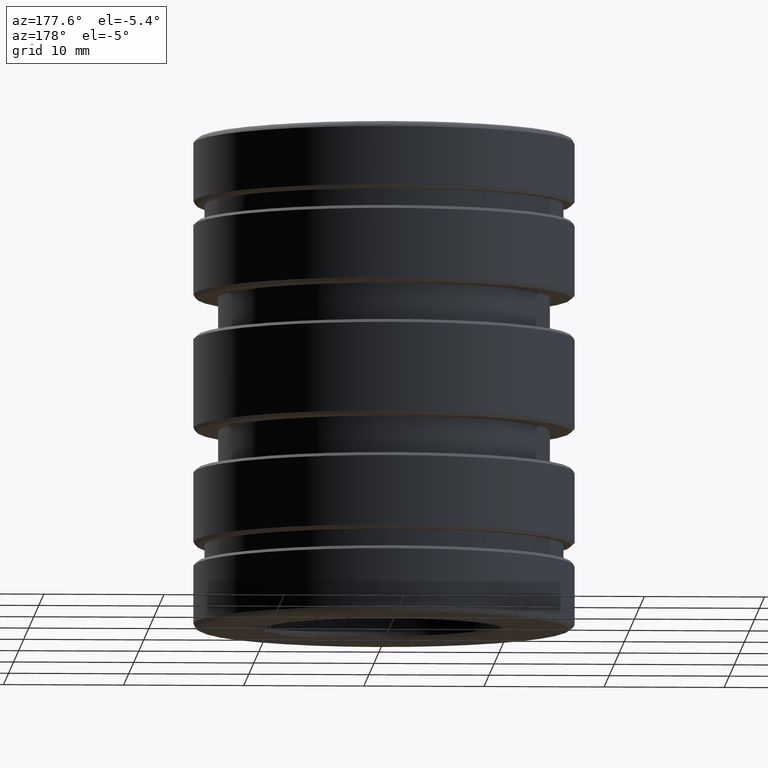
[diagram: clean part render]
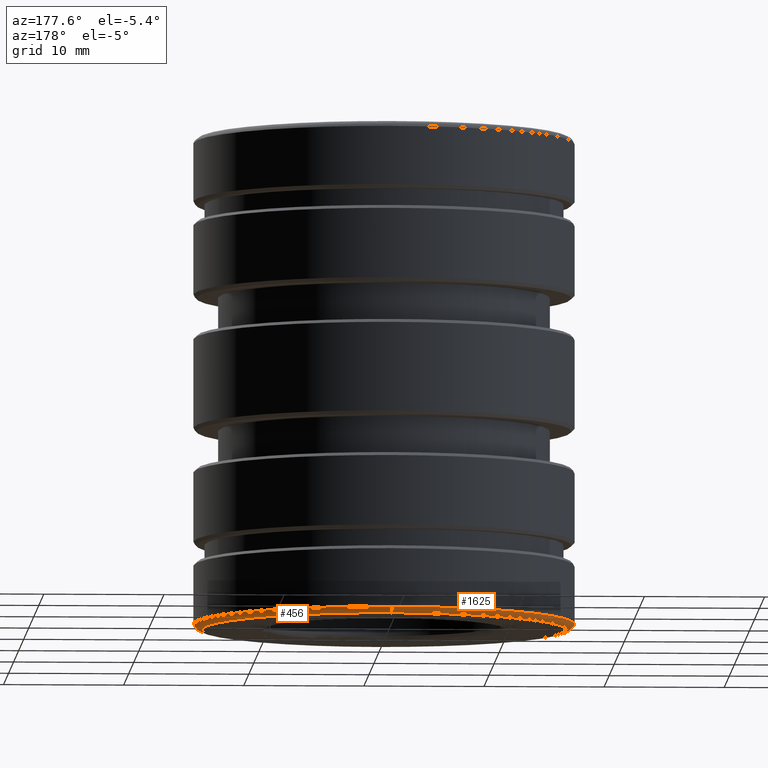
[diagram: same view with one multi-face feature highlighted, each face labeled with its STEP entity id]
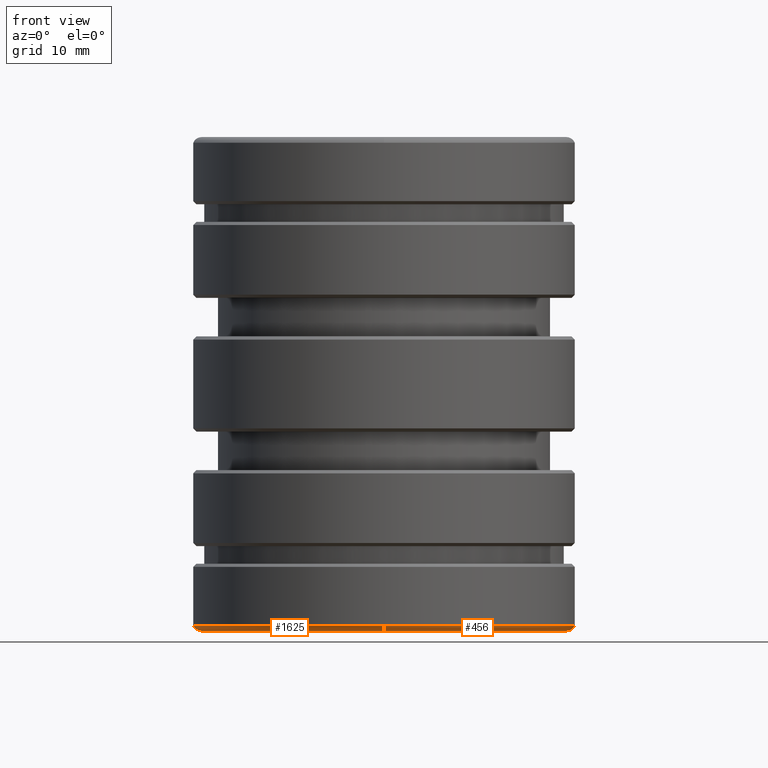
[diagram: same view with one multi-face feature highlighted, each face labeled with its STEP entity id]
A machine part, auxiliary view. The highlighted faces form ONE feature: a constant-radius fillet chain: 2 tangent blend faces with common blend radius 0.762 mm. The faces share edges in the B-rep.
A second angle (front view) of the same feature is appended — it is thin or edge-on in the first view.
Their STEP definitions:
[1] entity #456 (Torus):
#94 = DIRECTION ( 'NONE',  ( -1.000000000000000000, 1.224646799147353207E-16, -1.623773887080300330E-32 ) ) ;
#157 = DIRECTION ( 'NONE',  ( 0.000000000000000000, 1.325912000268840659E-16, 1.000000000000000000 ) ) ;
#158 = CARTESIAN_POINT ( 'NONE',  ( 0.000000000000000000, 0.6246249999999998748, -0.7901490131151779339 ) ) ;
#196 = CARTESIAN_POINT ( 'NONE',  ( 0.6246249999999999858, -3.032960542342103792E-32, -0.7901490131151777119 ) ) ;
#273 = DIRECTION ( 'NONE',  ( 0.000000000000000000, 1.000000000000000000, -2.288459052284199593E-16 ) ) ;
#318 = DIRECTION ( 'NONE',  ( -1.224646799147354933E-16, -1.000000000000000000, 0.000000000000000000 ) ) ;
#332 = AXIS2_PLACEMENT_3D ( 'NONE', #1897, #2741, #1688 ) ;
#410 = CARTESIAN_POINT ( 'NONE',  ( -7.479530325792460099E-17, -0.5968750000000001554, -0.8087499999999996358 ) ) ;
#456 = ADVANCED_FACE ( 'NONE', ( #1652 ), #2017, .T. ) ;
#490 = EDGE_CURVE ( 'NONE', #2105, #1862, #972, .T. ) ;
#495 = CARTESIAN_POINT ( 'NONE',  ( 0.000000000000000000, -1.072331330217424556E-16, -0.8087499999999998579 ) ) ;
#553 = CIRCLE ( 'NONE', #1869, 0.6246249999999999858 ) ;
#587 = EDGE_CURVE ( 'NONE', #831, #2086, #1427, .T. ) ;
#621 = EDGE_LOOP ( 'NONE', ( #1114, #1748, #2055, #677, #1344 ) ) ;
#677 = ORIENTED_EDGE ( 'NONE', *, *, #1120, .F. ) ;
#709 = DIRECTION ( 'NONE',  ( -0.000000000000000000, -1.325912000268840659E-16, -1.000000000000000000 ) ) ;
#818 = CIRCLE ( 'NONE', #1559, 0.6246249999999999858 ) ;
#831 = VERTEX_POINT ( 'NONE', #410 ) ;
#925 = CIRCLE ( 'NONE', #2097, 0.5968750000000000444 ) ;
#972 = CIRCLE ( 'NONE', #332, 0.02999999999999995379 ) ;
#984 = CARTESIAN_POINT ( 'NONE',  ( 0.000000000000000000, -1.381038085112767818E-16, -0.7901490131151777119 ) ) ;
#990 = EDGE_CURVE ( 'NONE', #2105, #831, #925, .T. ) ;
#1114 = ORIENTED_EDGE ( 'NONE', *, *, #587, .F. ) ;
#1120 = EDGE_CURVE ( 'NONE', #1472, #1862, #553, .T. ) ;
#1235 = DIRECTION ( 'NONE',  ( 0.000000000000000000, 1.325912000268840659E-16, 1.000000000000000000 ) ) ;
#1253 = DIRECTION ( 'NONE',  ( 0.000000000000000000, 1.000000000000000000, -1.325912000268840659E-16 ) ) ;
#1261 = CARTESIAN_POINT ( 'NONE',  ( 0.000000000000000000, -1.365923996832131609E-16, -0.7787499999999998312 ) ) ;
#1344 = ORIENTED_EDGE ( 'NONE', *, *, #2651, .F. ) ;
#1427 = CIRCLE ( 'NONE', #2496, 0.02999999999999995379 ) ;
#1472 = VERTEX_POINT ( 'NONE', #196 ) ;
#1559 = AXIS2_PLACEMENT_3D ( 'NONE', #984, #2163, #1845 ) ;
#1568 = AXIS2_PLACEMENT_3D ( 'NONE', #1261, #1235, #1253 ) ;
#1578 = CARTESIAN_POINT ( 'NONE',  ( -7.649450069174155443E-17, -0.6246250000000002078, -0.7901490131151776009 ) ) ;
#1652 = FACE_OUTER_BOUND ( 'NONE', #621, .T. ) ;
#1688 = DIRECTION ( 'NONE',  ( 0.000000000000000000, 0.000000000000000000, -1.000000000000000000 ) ) ;
#1700 = DIRECTION ( 'NONE',  ( 0.000000000000000000, -1.000000000000000000, 2.186790469212938433E-16 ) ) ;
#1748 = ORIENTED_EDGE ( 'NONE', *, *, #990, .F. ) ;
#1845 = DIRECTION ( 'NONE',  ( 0.000000000000000000, -1.000000000000000000, 2.186790469212938433E-16 ) ) ;
#1862 = VERTEX_POINT ( 'NONE', #158 ) ;
#1869 = AXIS2_PLACEMENT_3D ( 'NONE', #2135, #157, #1700 ) ;
#1897 = CARTESIAN_POINT ( 'NONE',  ( 0.000000000000000000, 0.5968749999999999334, -0.7787499999999999423 ) ) ;
#2017 = TOROIDAL_SURFACE ( 'NONE', #1568, 0.5968750000000000444, 0.02999999999999995379 ) ;
#2055 = ORIENTED_EDGE ( 'NONE', *, *, #490, .T. ) ;
#2056 = CARTESIAN_POINT ( 'NONE',  ( -7.309610582410764756E-17, -0.5968750000000001554, -0.7787499999999997202 ) ) ;
#2086 = VERTEX_POINT ( 'NONE', #1578 ) ;
#2097 = AXIS2_PLACEMENT_3D ( 'NONE', #495, #709, #273 ) ;
#2105 = VERTEX_POINT ( 'NONE', #2468 ) ;
#2135 = CARTESIAN_POINT ( 'NONE',  ( 0.000000000000000000, -1.381038085112767818E-16, -0.7901490131151777119 ) ) ;
#2163 = DIRECTION ( 'NONE',  ( 0.000000000000000000, 1.325912000268840659E-16, 1.000000000000000000 ) ) ;
#2468 = CARTESIAN_POINT ( 'NONE',  ( 0.000000000000000000, 0.5968749999999999334, -0.8087499999999999689 ) ) ;
#2496 = AXIS2_PLACEMENT_3D ( 'NONE', #2056, #94, #318 ) ;
#2651 = EDGE_CURVE ( 'NONE', #2086, #1472, #818, .T. ) ;
#2741 = DIRECTION ( 'NONE',  ( 1.000000000000000000, -0.000000000000000000, 0.000000000000000000 ) ) ;
[2] entity #1625 (Torus):
#49 = DIRECTION ( 'NONE',  ( 0.000000000000000000, -1.000000000000000000, 2.186790469212938433E-16 ) ) ;
#94 = DIRECTION ( 'NONE',  ( -1.000000000000000000, 1.224646799147353207E-16, -1.623773887080300330E-32 ) ) ;
#116 = DIRECTION ( 'NONE',  ( -0.000000000000000000, -1.325912000268840659E-16, -1.000000000000000000 ) ) ;
#128 = DIRECTION ( 'NONE',  ( 0.000000000000000000, 1.000000000000000000, -2.288459052284199593E-16 ) ) ;
#158 = CARTESIAN_POINT ( 'NONE',  ( 0.000000000000000000, 0.6246249999999998748, -0.7901490131151779339 ) ) ;
#318 = DIRECTION ( 'NONE',  ( -1.224646799147354933E-16, -1.000000000000000000, 0.000000000000000000 ) ) ;
#332 = AXIS2_PLACEMENT_3D ( 'NONE', #1897, #2741, #1688 ) ;
#410 = CARTESIAN_POINT ( 'NONE',  ( -7.479530325792460099E-17, -0.5968750000000001554, -0.8087499999999996358 ) ) ;
#426 = EDGE_CURVE ( 'NONE', #831, #2105, #2462, .T. ) ;
#490 = EDGE_CURVE ( 'NONE', #2105, #1862, #972, .T. ) ;
#567 = CARTESIAN_POINT ( 'NONE',  ( 0.000000000000000000, -1.072331330217424556E-16, -0.8087499999999998579 ) ) ;
#587 = EDGE_CURVE ( 'NONE', #831, #2086, #1427, .T. ) ;
#831 = VERTEX_POINT ( 'NONE', #410 ) ;
#853 = CARTESIAN_POINT ( 'NONE',  ( 0.000000000000000000, -1.381038085112767818E-16, -0.7901490131151777119 ) ) ;
#972 = CIRCLE ( 'NONE', #332, 0.02999999999999995379 ) ;
#1006 = FACE_OUTER_BOUND ( 'NONE', #1186, .T. ) ;
#1186 = EDGE_LOOP ( 'NONE', ( #2179, #1685, #1645, #2536, #2077 ) ) ;
#1203 = EDGE_CURVE ( 'NONE', #2359, #2086, #2622, .T. ) ;
#1268 = DIRECTION ( 'NONE',  ( 0.000000000000000000, -1.000000000000000000, 2.186790469212938433E-16 ) ) ;
#1363 = CARTESIAN_POINT ( 'NONE',  ( 0.000000000000000000, -1.381038085112767818E-16, -0.7901490131151777119 ) ) ;
#1416 = AXIS2_PLACEMENT_3D ( 'NONE', #1363, #2414, #49 ) ;
#1420 = AXIS2_PLACEMENT_3D ( 'NONE', #853, #1892, #1268 ) ;
#1427 = CIRCLE ( 'NONE', #2496, 0.02999999999999995379 ) ;
#1450 = CARTESIAN_POINT ( 'NONE',  ( 0.000000000000000000, -1.365923996832131609E-16, -0.7787499999999998312 ) ) ;
#1523 = TOROIDAL_SURFACE ( 'NONE', #2463, 0.5968750000000000444, 0.02999999999999995379 ) ;
#1578 = CARTESIAN_POINT ( 'NONE',  ( -7.649450069174155443E-17, -0.6246250000000002078, -0.7901490131151776009 ) ) ;
#1625 = ADVANCED_FACE ( 'NONE', ( #1006 ), #1523, .T. ) ;
#1645 = ORIENTED_EDGE ( 'NONE', *, *, #1203, .F. ) ;
#1685 = ORIENTED_EDGE ( 'NONE', *, *, #587, .T. ) ;
#1688 = DIRECTION ( 'NONE',  ( 0.000000000000000000, 0.000000000000000000, -1.000000000000000000 ) ) ;
#1862 = VERTEX_POINT ( 'NONE', #158 ) ;
#1892 = DIRECTION ( 'NONE',  ( 0.000000000000000000, 1.325912000268840659E-16, 1.000000000000000000 ) ) ;
#1897 = CARTESIAN_POINT ( 'NONE',  ( 0.000000000000000000, 0.5968749999999999334, -0.7787499999999999423 ) ) ;
#2005 = CIRCLE ( 'NONE', #1416, 0.6246249999999999858 ) ;
#2056 = CARTESIAN_POINT ( 'NONE',  ( -7.309610582410764756E-17, -0.5968750000000001554, -0.7787499999999997202 ) ) ;
#2077 = ORIENTED_EDGE ( 'NONE', *, *, #490, .F. ) ;
#2086 = VERTEX_POINT ( 'NONE', #1578 ) ;
#2105 = VERTEX_POINT ( 'NONE', #2468 ) ;
#2179 = ORIENTED_EDGE ( 'NONE', *, *, #426, .F. ) ;
#2324 = DIRECTION ( 'NONE',  ( 0.000000000000000000, 1.000000000000000000, -1.325912000268840659E-16 ) ) ;
#2359 = VERTEX_POINT ( 'NONE', #2564 ) ;
#2414 = DIRECTION ( 'NONE',  ( 0.000000000000000000, 1.325912000268840659E-16, 1.000000000000000000 ) ) ;
#2462 = CIRCLE ( 'NONE', #2575, 0.5968750000000000444 ) ;
#2463 = AXIS2_PLACEMENT_3D ( 'NONE', #1450, #2782, #2324 ) ;
#2468 = CARTESIAN_POINT ( 'NONE',  ( 0.000000000000000000, 0.5968749999999999334, -0.8087499999999999689 ) ) ;
#2496 = AXIS2_PLACEMENT_3D ( 'NONE', #2056, #94, #318 ) ;
#2511 = EDGE_CURVE ( 'NONE', #1862, #2359, #2005, .T. ) ;
#2536 = ORIENTED_EDGE ( 'NONE', *, *, #2511, .F. ) ;
#2564 = CARTESIAN_POINT ( 'NONE',  ( -0.6246249999999999858, 7.649450069174151745E-17, -0.7901490131151777119 ) ) ;
#2575 = AXIS2_PLACEMENT_3D ( 'NONE', #567, #116, #128 ) ;
#2622 = CIRCLE ( 'NONE', #1420, 0.6246249999999999858 ) ;
#2741 = DIRECTION ( 'NONE',  ( 1.000000000000000000, -0.000000000000000000, 0.000000000000000000 ) ) ;
#2782 = DIRECTION ( 'NONE',  ( 0.000000000000000000, 1.325912000268840659E-16, 1.000000000000000000 ) ) ;